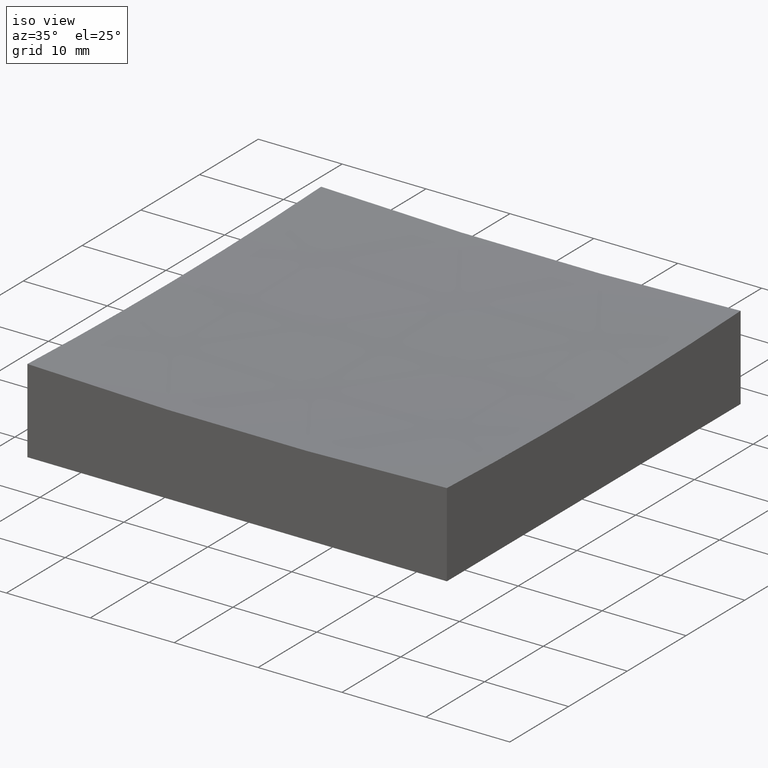
[diagram: clean part render]
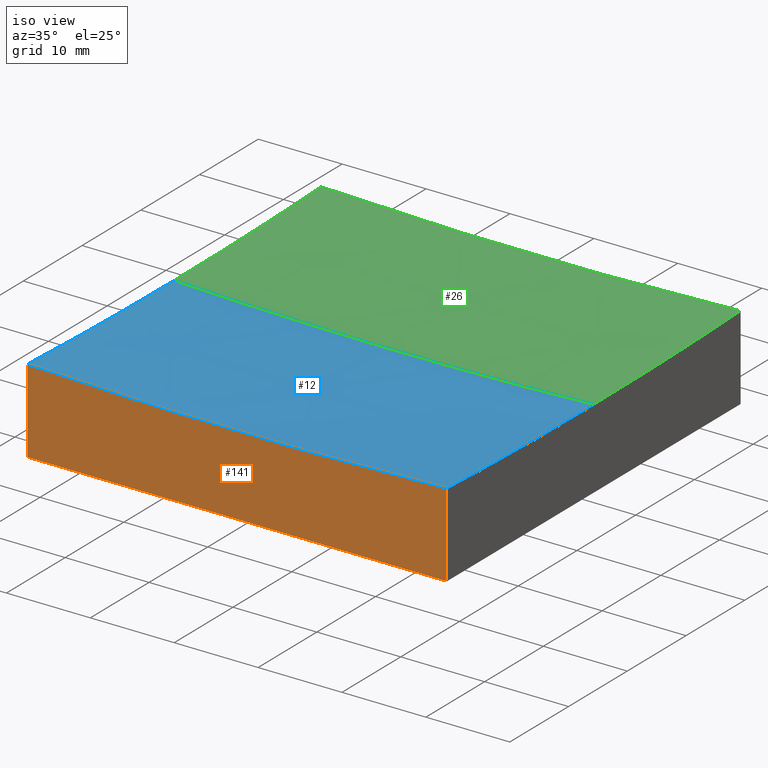
[diagram: same view with three faces highlighted in distinct colors, each labeled with its STEP entity id]
A machine part, iso view with three faces highlighted in distinct colors.
Their STEP definitions:

[orange] entity #141 — the highlighted planar face has unit normal (0, 1, 0).
#14 = DIRECTION ( 'NONE',  ( -0.0000000000000000000, -0.0000000000000000000, -1.000000000000000000 ) ) ;
#24 = VECTOR ( 'NONE', #66, 1000.000000000000000 ) ;
#29 = DIRECTION ( 'NONE',  ( 0.0000000000000000000, 1.000000000000000000, 0.0000000000000000000 ) ) ;
#30 = ORIENTED_EDGE ( 'NONE', *, *, #180, .T. ) ;
#31 = CARTESIAN_POINT ( 'NONE',  ( 25.00000000000000000, -25.00000000000000711, 10.04257246445305896 ) ) ;
#33 = ORIENTED_EDGE ( 'NONE', *, *, #110, .T. ) ;
#51 = DIRECTION ( 'NONE',  ( 0.0000000000000000000, -0.0000000000000000000, 1.000000000000000000 ) ) ;
#64 = CIRCLE ( 'NONE', #172, 599.4789404140898341 ) ;
#66 = DIRECTION ( 'NONE',  ( 1.000000000000000000, 0.0000000000000000000, 0.0000000000000000000 ) ) ;
#73 = FACE_OUTER_BOUND ( 'NONE', #125, .T. ) ;
#77 = CARTESIAN_POINT ( 'NONE',  ( -25.00000000000000000, -25.00000000000000711, 0.0000000000000000000 ) ) ;
#83 = VECTOR ( 'NONE', #14, 1000.000000000000000 ) ;
#84 = LINE ( 'NONE', #158, #24 ) ;
#86 = CARTESIAN_POINT ( 'NONE',  ( -25.00000000000000000, -25.00000000000000711, 50.00000000000000000 ) ) ;
#89 = CARTESIAN_POINT ( 'NONE',  ( 25.00000000000000000, -25.00000000000000711, 0.0000000000000000000 ) ) ;
#90 = LINE ( 'NONE', #230, #83 ) ;
#91 = VERTEX_POINT ( 'NONE', #89 ) ;
#106 = ORIENTED_EDGE ( 'NONE', *, *, #200, .T. ) ;
#108 = LINE ( 'NONE', #86, #188 ) ;
#110 = EDGE_CURVE ( 'NONE', #251, #91, #84, .T. ) ;
#124 = DIRECTION ( 'NONE',  ( -0.0000000000000000000, -0.0000000000000000000, -1.000000000000000000 ) ) ;
#125 = EDGE_LOOP ( 'NONE', ( #127, #106, #30, #33 ) ) ;
#127 = ORIENTED_EDGE ( 'NONE', *, *, #154, .F. ) ;
#133 = CARTESIAN_POINT ( 'NONE',  ( 7.458099006807380620E-14, -25.00000000000000711, 609.0000000000000000 ) ) ;
#134 = DIRECTION ( 'NONE',  ( 0.0000000000000000000, 1.000000000000000000, 0.0000000000000000000 ) ) ;
#141 = ADVANCED_FACE ( 'NONE', ( #73 ), #163, .F. ) ;
#154 = EDGE_CURVE ( 'NONE', #179, #91, #90, .T. ) ;
#158 = CARTESIAN_POINT ( 'NONE',  ( -25.00000000000000000, -25.00000000000000711, 0.0000000000000000000 ) ) ;
#163 = PLANE ( 'NONE',  #197 ) ;
#169 = DIRECTION ( 'NONE',  ( 0.0000000000000000000, 0.0000000000000000000, 1.000000000000000000 ) ) ;
#172 = AXIS2_PLACEMENT_3D ( 'NONE', #133, #134, #169 ) ;
#179 = VERTEX_POINT ( 'NONE', #31 ) ;
#180 = EDGE_CURVE ( 'NONE', #234, #251, #108, .T. ) ;
#185 = CARTESIAN_POINT ( 'NONE',  ( -25.00000000000000000, -25.00000000000000711, 50.00000000000000000 ) ) ;
#188 = VECTOR ( 'NONE', #124, 1000.000000000000000 ) ;
#197 = AXIS2_PLACEMENT_3D ( 'NONE', #185, #29, #51 ) ;
#200 = EDGE_CURVE ( 'NONE', #179, #234, #64, .T. ) ;
#218 = CARTESIAN_POINT ( 'NONE',  ( -25.00000000000000000, -25.00000000000000711, 10.04257246445305896 ) ) ;
#230 = CARTESIAN_POINT ( 'NONE',  ( 25.00000000000000000, -25.00000000000000711, 50.00000000000000000 ) ) ;
#234 = VERTEX_POINT ( 'NONE', #218 ) ;
#251 = VERTEX_POINT ( 'NONE', #77 ) ;

[blue] entity #12 — the highlighted spherical surface has radius 600 mm.
#1 = DIRECTION ( 'NONE',  ( 1.000000000000000000, 6.938893903907228378E-17, -0.0000000000000000000 ) ) ;
#4 = DIRECTION ( 'NONE',  ( -6.944925103571634921E-17, 1.000000000000000000, 0.0000000000000000000 ) ) ;
#5 = EDGE_CURVE ( 'NONE', #88, #231, #194, .T. ) ;
#8 = DIRECTION ( 'NONE',  ( 1.000000000000000000, 0.0000000000000000000, 1.850371707708594316E-16 ) ) ;
#12 = ADVANCED_FACE ( 'NONE', ( #199 ), #157, .F. ) ;
#18 = ORIENTED_EDGE ( 'NONE', *, *, #235, .F. ) ;
#19 = ORIENTED_EDGE ( 'NONE', *, *, #200, .F. ) ;
#20 = ORIENTED_EDGE ( 'NONE', *, *, #214, .T. ) ;
#31 = CARTESIAN_POINT ( 'NONE',  ( 25.00000000000000000, -25.00000000000000711, 10.04257246445305896 ) ) ;
#37 = DIRECTION ( 'NONE',  ( 1.000000000000000000, 6.938893903907228378E-17, -0.0000000000000000000 ) ) ;
#43 = CARTESIAN_POINT ( 'NONE',  ( 7.458099006807380620E-14, 0.0000000000000000000, 609.0000000000000000 ) ) ;
#59 = AXIS2_PLACEMENT_3D ( 'NONE', #67, #101, #182 ) ;
#62 = CIRCLE ( 'NONE', #205, 599.4789404140898341 ) ;
#64 = CIRCLE ( 'NONE', #172, 599.4789404140898341 ) ;
#65 = EDGE_CURVE ( 'NONE', #88, #119, #228, .T. ) ;
#67 = CARTESIAN_POINT ( 'NONE',  ( 7.458099006807380620E-14, 0.0000000000000000000, 609.0000000000000000 ) ) ;
#69 = CARTESIAN_POINT ( 'NONE',  ( 1.896770381225379131E-13, 0.0000000000000000000, 9.000000000000007105 ) ) ;
#88 = VERTEX_POINT ( 'NONE', #69 ) ;
#93 = CARTESIAN_POINT ( 'NONE',  ( 24.99999999999999645, 1.734723475976801967E-15, 609.0000000000000000 ) ) ;
#94 = DIRECTION ( 'NONE',  ( -6.944925103571634921E-17, 1.000000000000000000, 0.0000000000000000000 ) ) ;
#95 = CIRCLE ( 'NONE', #130, 599.4789404140898341 ) ;
#101 = DIRECTION ( 'NONE',  ( 0.0000000000000000000, -1.000000000000000000, 0.0000000000000000000 ) ) ;
#102 = DIRECTION ( 'NONE',  ( 1.224646799147353207E-16, 1.000000000000000000, 1.599320222742561506E-32 ) ) ;
#118 = AXIS2_PLACEMENT_3D ( 'NONE', #43, #202, #8 ) ;
#119 = VERTEX_POINT ( 'NONE', #244 ) ;
#130 = AXIS2_PLACEMENT_3D ( 'NONE', #217, #1, #94 ) ;
#133 = CARTESIAN_POINT ( 'NONE',  ( 7.458099006807380620E-14, -25.00000000000000711, 609.0000000000000000 ) ) ;
#134 = DIRECTION ( 'NONE',  ( 0.0000000000000000000, 1.000000000000000000, 0.0000000000000000000 ) ) ;
#157 = SPHERICAL_SURFACE ( 'NONE', #118, 600.0000000000000000 ) ;
#159 = ORIENTED_EDGE ( 'NONE', *, *, #65, .T. ) ;
#162 = DIRECTION ( 'NONE',  ( -1.000000000000000000, 1.224646799147353207E-16, 0.0000000000000000000 ) ) ;
#164 = ORIENTED_EDGE ( 'NONE', *, *, #5, .F. ) ;
#169 = DIRECTION ( 'NONE',  ( 0.0000000000000000000, 0.0000000000000000000, 1.000000000000000000 ) ) ;
#170 = EDGE_LOOP ( 'NONE', ( #164, #159, #18, #19, #20 ) ) ;
#172 = AXIS2_PLACEMENT_3D ( 'NONE', #133, #134, #169 ) ;
#174 = CARTESIAN_POINT ( 'NONE',  ( 24.99999999999999289, 0.0000000000000000000, 9.521059585910096601 ) ) ;
#179 = VERTEX_POINT ( 'NONE', #31 ) ;
#182 = DIRECTION ( 'NONE',  ( 0.0000000000000000000, 0.0000000000000000000, -1.000000000000000000 ) ) ;
#194 = CIRCLE ( 'NONE', #59, 600.0000000000000000 ) ;
#199 = FACE_OUTER_BOUND ( 'NONE', #170, .T. ) ;
#200 = EDGE_CURVE ( 'NONE', #179, #234, #64, .T. ) ;
#202 = DIRECTION ( 'NONE',  ( -0.0000000000000000000, 1.000000000000000000, 0.0000000000000000000 ) ) ;
#205 = AXIS2_PLACEMENT_3D ( 'NONE', #93, #37, #4 ) ;
#214 = EDGE_CURVE ( 'NONE', #179, #231, #62, .T. ) ;
#217 = CARTESIAN_POINT ( 'NONE',  ( -25.00000000000000355, -1.734723475976812419E-15, 609.0000000000000000 ) ) ;
#218 = CARTESIAN_POINT ( 'NONE',  ( -25.00000000000000000, -25.00000000000000711, 10.04257246445305896 ) ) ;
#228 = CIRCLE ( 'NONE', #238, 600.0000000000000000 ) ;
#231 = VERTEX_POINT ( 'NONE', #174 ) ;
#232 = CARTESIAN_POINT ( 'NONE',  ( 7.458099006807380620E-14, 0.0000000000000000000, 609.0000000000000000 ) ) ;
#234 = VERTEX_POINT ( 'NONE', #218 ) ;
#235 = EDGE_CURVE ( 'NONE', #234, #119, #95, .T. ) ;
#238 = AXIS2_PLACEMENT_3D ( 'NONE', #232, #102, #162 ) ;
#244 = CARTESIAN_POINT ( 'NONE',  ( -25.00000000000000355, 3.061616997868401581E-15, 9.521059585910096601 ) ) ;

[green] entity #26 — the highlighted spherical surface has radius 600 mm.
#5 = EDGE_CURVE ( 'NONE', #88, #231, #194, .T. ) ;
#16 = DIRECTION ( 'NONE',  ( 0.0000000000000000000, 0.0000000000000000000, 1.000000000000000000 ) ) ;
#21 = EDGE_CURVE ( 'NONE', #231, #248, #79, .T. ) ;
#26 = ADVANCED_FACE ( 'NONE', ( #80 ), #229, .F. ) ;
#38 = AXIS2_PLACEMENT_3D ( 'NONE', #249, #207, #142 ) ;
#53 = ORIENTED_EDGE ( 'NONE', *, *, #21, .T. ) ;
#59 = AXIS2_PLACEMENT_3D ( 'NONE', #67, #101, #182 ) ;
#60 = CARTESIAN_POINT ( 'NONE',  ( 24.99999999999999645, 24.99999999999999645, 10.04257246445305896 ) ) ;
#61 = EDGE_CURVE ( 'NONE', #248, #252, #68, .T. ) ;
#65 = EDGE_CURVE ( 'NONE', #88, #119, #228, .T. ) ;
#67 = CARTESIAN_POINT ( 'NONE',  ( 7.458099006807380620E-14, 0.0000000000000000000, 609.0000000000000000 ) ) ;
#68 = CIRCLE ( 'NONE', #87, 599.4789404140898341 ) ;
#69 = CARTESIAN_POINT ( 'NONE',  ( 1.896770381225379131E-13, 0.0000000000000000000, 9.000000000000007105 ) ) ;
#79 = CIRCLE ( 'NONE', #143, 599.4789404140898341 ) ;
#80 = FACE_OUTER_BOUND ( 'NONE', #226, .T. ) ;
#81 = DIRECTION ( 'NONE',  ( -6.944925103571634921E-17, 1.000000000000000000, 0.0000000000000000000 ) ) ;
#85 = CARTESIAN_POINT ( 'NONE',  ( 7.458099006807380620E-14, 24.99999999999999645, 609.0000000000000000 ) ) ;
#87 = AXIS2_PLACEMENT_3D ( 'NONE', #85, #123, #16 ) ;
#88 = VERTEX_POINT ( 'NONE', #69 ) ;
#92 = EDGE_CURVE ( 'NONE', #119, #252, #98, .T. ) ;
#98 = CIRCLE ( 'NONE', #38, 599.4789404140898341 ) ;
#101 = DIRECTION ( 'NONE',  ( 0.0000000000000000000, -1.000000000000000000, 0.0000000000000000000 ) ) ;
#102 = DIRECTION ( 'NONE',  ( 1.224646799147353207E-16, 1.000000000000000000, 1.599320222742561506E-32 ) ) ;
#111 = ORIENTED_EDGE ( 'NONE', *, *, #5, .T. ) ;
#119 = VERTEX_POINT ( 'NONE', #244 ) ;
#122 = DIRECTION ( 'NONE',  ( 1.000000000000000000, 0.0000000000000000000, 1.850371707708594316E-16 ) ) ;
#123 = DIRECTION ( 'NONE',  ( 0.0000000000000000000, 1.000000000000000000, 0.0000000000000000000 ) ) ;
#132 = AXIS2_PLACEMENT_3D ( 'NONE', #165, #184, #122 ) ;
#140 = CARTESIAN_POINT ( 'NONE',  ( 24.99999999999999645, 1.734723475976801967E-15, 609.0000000000000000 ) ) ;
#142 = DIRECTION ( 'NONE',  ( -6.944925103571634921E-17, 1.000000000000000000, 0.0000000000000000000 ) ) ;
#143 = AXIS2_PLACEMENT_3D ( 'NONE', #140, #242, #81 ) ;
#149 = ORIENTED_EDGE ( 'NONE', *, *, #61, .T. ) ;
#162 = DIRECTION ( 'NONE',  ( -1.000000000000000000, 1.224646799147353207E-16, 0.0000000000000000000 ) ) ;
#165 = CARTESIAN_POINT ( 'NONE',  ( 7.458099006807380620E-14, 0.0000000000000000000, 609.0000000000000000 ) ) ;
#174 = CARTESIAN_POINT ( 'NONE',  ( 24.99999999999999289, 0.0000000000000000000, 9.521059585910096601 ) ) ;
#182 = DIRECTION ( 'NONE',  ( 0.0000000000000000000, 0.0000000000000000000, -1.000000000000000000 ) ) ;
#184 = DIRECTION ( 'NONE',  ( -0.0000000000000000000, 1.000000000000000000, 0.0000000000000000000 ) ) ;
#194 = CIRCLE ( 'NONE', #59, 600.0000000000000000 ) ;
#195 = CARTESIAN_POINT ( 'NONE',  ( -25.00000000000000711, 24.99999999999999645, 10.04257246445305896 ) ) ;
#207 = DIRECTION ( 'NONE',  ( 1.000000000000000000, 6.938893903907228378E-17, -0.0000000000000000000 ) ) ;
#209 = ORIENTED_EDGE ( 'NONE', *, *, #92, .F. ) ;
#224 = ORIENTED_EDGE ( 'NONE', *, *, #65, .F. ) ;
#226 = EDGE_LOOP ( 'NONE', ( #224, #111, #53, #149, #209 ) ) ;
#228 = CIRCLE ( 'NONE', #238, 600.0000000000000000 ) ;
#229 = SPHERICAL_SURFACE ( 'NONE', #132, 600.0000000000000000 ) ;
#231 = VERTEX_POINT ( 'NONE', #174 ) ;
#232 = CARTESIAN_POINT ( 'NONE',  ( 7.458099006807380620E-14, 0.0000000000000000000, 609.0000000000000000 ) ) ;
#238 = AXIS2_PLACEMENT_3D ( 'NONE', #232, #102, #162 ) ;
#242 = DIRECTION ( 'NONE',  ( 1.000000000000000000, 6.938893903907228378E-17, -0.0000000000000000000 ) ) ;
#244 = CARTESIAN_POINT ( 'NONE',  ( -25.00000000000000355, 3.061616997868401581E-15, 9.521059585910096601 ) ) ;
#248 = VERTEX_POINT ( 'NONE', #60 ) ;
#249 = CARTESIAN_POINT ( 'NONE',  ( -25.00000000000000355, -1.734723475976812419E-15, 609.0000000000000000 ) ) ;
#252 = VERTEX_POINT ( 'NONE', #195 ) ;